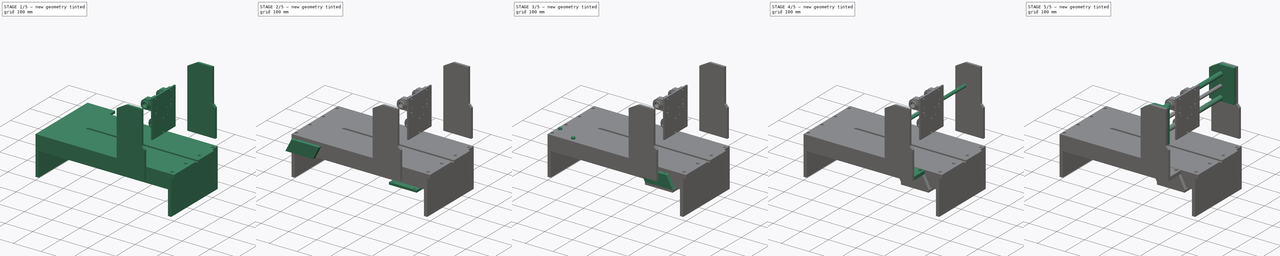
[diagram: build sequence overview — one tinted view per stage of 5, left to right]
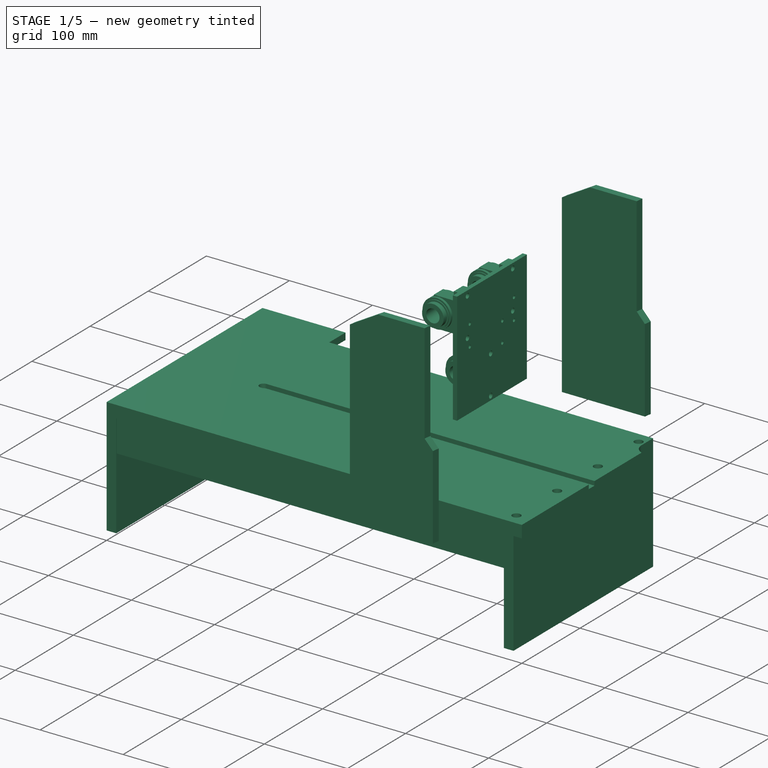
[diagram: stage 1 of 5 — iso view after this stage's code; geometry added in this stage tinted green]
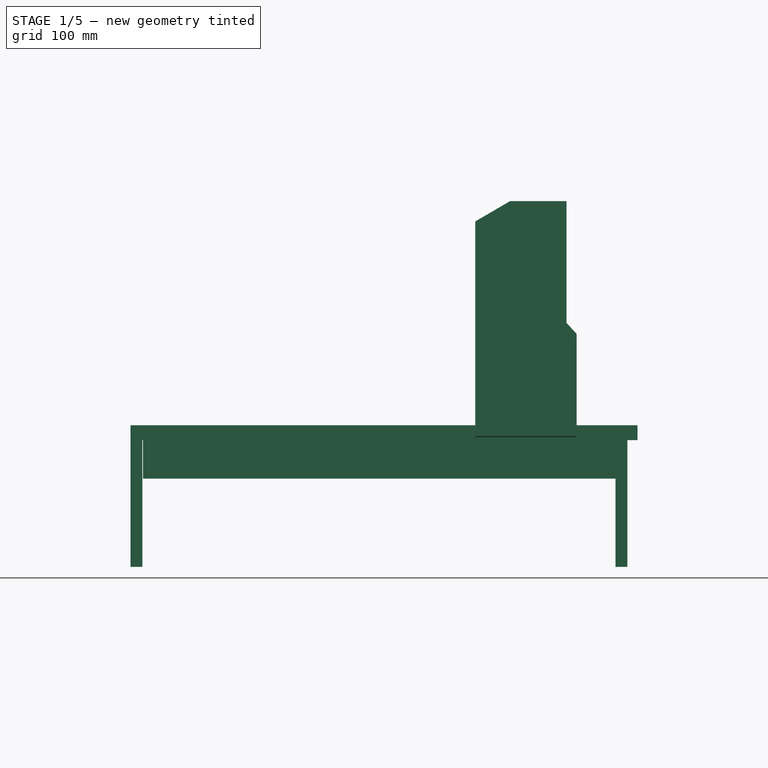
[diagram: stage 1 of 5 — front view after this stage's code; geometry added in this stage tinted green]
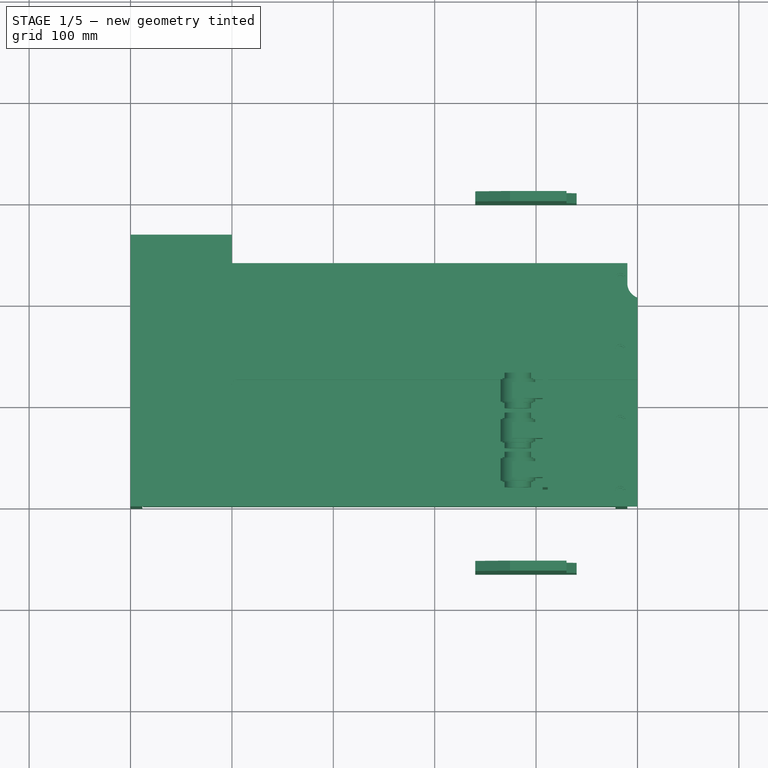
[diagram: stage 1 of 5 — top view after this stage's code; geometry added in this stage tinted green]
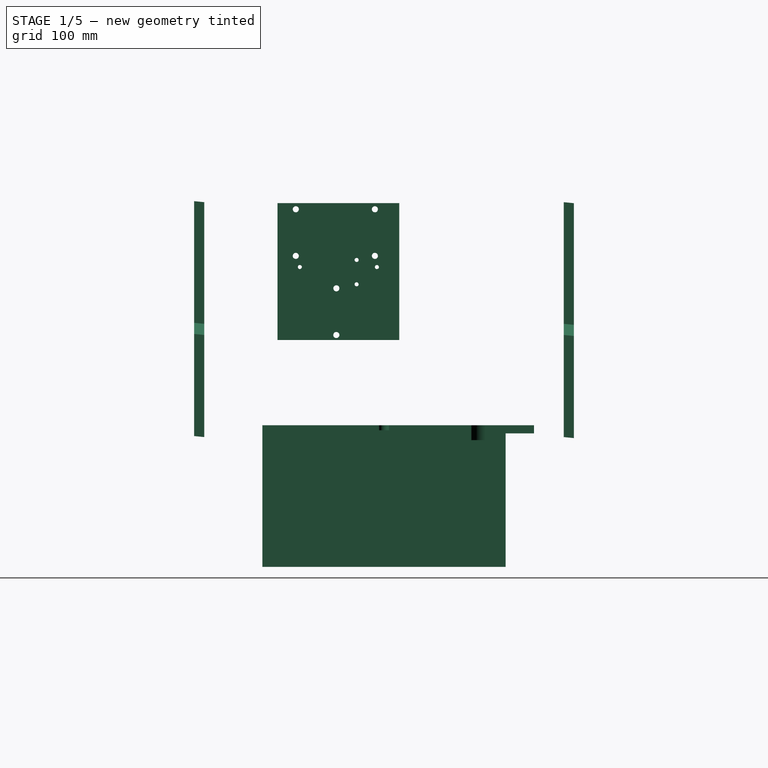
[diagram: stage 1 of 5 — right view after this stage's code; geometry added in this stage tinted green]
FCSTD DOCUMENT  (FreeCAD 0.14R3347 (Git))
Label: mod
License: CC-BY 3.0
LicenseURL: http://creativecommons.org/licenses/by/3.0/
objects: Part::Extrusion×40, Part::Part2DObjectPython×34, Part::Cut×30, PartDesign::Pocket×8, Part::Feature×6, App::DocumentObjectGroup×5, Part::Box×3, Part::Cylinder×2, Sketcher::SketchObject×1
note: 132 computed .brp shape members not serialized (recipe doc carries the construction recipe); baked Part::Feature solids carry a one-line shape summary decoded from their .brp

FEATURE [Part::Feature] Face004
  shape: bbox 100 x 268 x 2e-07 mm, 1 faces, 0 solids (baked)
FEATURE [Part::Part2DObjectPython] Circle056  # Draft 2D object (typed FeaturePython)
  FirstAngle = 0
  LastAngle = 0
  Placement = pos=(12,7,0) rot=(0,0,1;0rad)
  Radius = 6
FEATURE [Part::Part2DObjectPython] Circle057  # Draft 2D object (typed FeaturePython)
  FirstAngle = 0
  LastAngle = 0
  Placement = pos=(88,261,0) rot=(0,0,1;0rad)
  Radius = 6
FEATURE [Part::Part2DObjectPython] Circle058  # Draft 2D object (typed FeaturePython)
  FirstAngle = 0
  LastAngle = 0
  Placement = pos=(12,261,0) rot=(0,0,1;0rad)
  Radius = 6
FEATURE [Part::Part2DObjectPython] Circle059  # Draft 2D object (typed FeaturePython)
  FirstAngle = 0
  LastAngle = 0
  Placement = pos=(88,7,0) rot=(0,0,1;0rad)
  Radius = 6
FEATURE [Part::Extrusion] Extrude029
  Base = -> Face004
  Dir = (0,0,-8.1)
  Solid = true
FEATURE [Part::Extrusion] Extrude033
  Base = -> Circle059
  Dir = (0,0,-4.2)
  Solid = true
FEATURE [Part::Cut] Cut023
  Base = -> Extrude029
  Tool = -> Extrude033
FEATURE [Part::Part2DObjectPython] Circle060  # Draft 2D object (typed FeaturePython)
  FirstAngle = 0
  LastAngle = 0
  Placement = pos=(12,7,0) rot=(0,0,1;0rad)
  Radius = 3
FEATURE [Part::Part2DObjectPython] Circle061  # Draft 2D object (typed FeaturePython)
  FirstAngle = 0
  LastAngle = 0
  Placement = pos=(88,7,0) rot=(0,0,1;0rad)
  Radius = 3
FEATURE [Part::Part2DObjectPython] Circle062  # Draft 2D object (typed FeaturePython)
  FirstAngle = 0
  LastAngle = 0
  Placement = pos=(88,261,0) rot=(0,0,1;0rad)
  Radius = 3
FEATURE [Part::Part2DObjectPython] Circle063  # Draft 2D object (typed FeaturePython)
  FirstAngle = 0
  LastAngle = 0
  Placement = pos=(12,261,0) rot=(0,0,1;0rad)
  Radius = 3
FEATURE [Part::Extrusion] Extrude034
  Base = -> Circle063
  Dir = (0,0,-8.1)
  Solid = true
FEATURE [App::DocumentObjectGroup] Groupe001  label="X_SY"
  Group = -> [Cut013,Cut014,Cut018,Cut022,Cut030]
FEATURE [PartDesign::Pocket] Pocket  label="C_T"
  Length = 5
  Placement = pos=(500,240,-14.7) rot=(0,0,1;3.14159rad)
  Type = 0
FEATURE [Part::Box] Box001  label="C_B"
  Height = 125
  Length = 11.7
  Placement = pos=(489.999,240,-139.7) rot=(0,0,1;3.14159rad)
  Width = 240
FEATURE [Part::Box] Box001001  label="C_F"
  Height = 125
  Length = 11.7
  Placement = pos=(11.7,240,-139.7) rot=(0,0,1;3.14159rad)
  Width = 240
FEATURE [Part::Box] Box  label="X Axis"
  Height = 38
  Length = 466
  Placement = pos=(478.299,240,-52.7) rot=(0,0,1;3.14159rad)
  Width = 240
FEATURE [PartDesign::Pocket] Pocket001  label="Z_P"
  Length = 5
  Placement = pos=(406.499,15,84) rot=(0.57735,0.57735,0.57735;2.0944rad)
  Type = 1
FEATURE [PartDesign::Pocket] Pocket002  label="A_LB_Y0_alu"
  Length = 5
  Placement = pos=(406.499,73,140) rot=(0.707107,0,-0.707107;3.14159rad)
  Type = 1
FEATURE [PartDesign::Pocket] Pocket003  label="A_LB_Y0_plastic"
  Length = 5
  Placement = pos=(406.499,73,140) rot=(0.707107,0,-0.707107;3.14159rad)
  Type = 1
FEATURE [PartDesign::Pocket] Pocket004  label="A_LB_Y1_plastic"
  Length = 5
  Placement = pos=(406.499,111,218) rot=(0.707107,0,-0.707107;3.14159rad)
  Type = 1
FEATURE [PartDesign::Pocket] Pocket005  label="A_LB_Y1_alu"
  Length = 5
  Placement = pos=(406.499,111,218) rot=(0.707107,0,-0.707107;3.14159rad)
  Type = 1
FEATURE [PartDesign::Pocket] Pocket006  label="A_LB_Y2_plastic"
  Length = 5
  Placement = pos=(406.499,33,218) rot=(0.707107,0,-0.707107;3.14159rad)
  Type = 1
FEATURE [PartDesign::Pocket] Pocket007  label="A_LB_Y2_alu"
  Length = 5
  Placement = pos=(406.499,33,218) rot=(0.707107,0,-0.707107;3.14159rad)
  Type = 1
FEATURE [App::DocumentObjectGroup] Groupe002  label="Case"
  Group = -> [Pocket,Box001,Box001001,Box]
FEATURE [App::DocumentObjectGroup] Groupe003  label="Z Axis"
  Group = -> [Pocket001]
FEATURE [App::DocumentObjectGroup] Groupe004  label="Linear Bearings"
  Group = -> [Pocket002,Pocket003,Pocket004,Pocket005,Pocket006,Pocket007]
FEATURE [App::DocumentObjectGroup] Groupe  label="Y Axis"
  Group = -> [Cut002,Extrude004,Extrude005,Cut005,Cylinder,Cylinder001,Groupe004]
FEATURE [Sketcher::SketchObject] Sketch
  Placement = pos=(0,0,0) rot=(1,0,0;1.5708rad)
  sketch-geometry (7):
    g0: LineSegment StartX=202.547 StartY=-11.7 StartZ=0 EndX=202.547 EndY=200 EndZ=0
    g1: LineSegment StartX=202.547 StartY=200 StartZ=0 EndX=236.849 EndY=220 EndZ=0
    g2: LineSegment StartX=236.849 StartY=220 StartZ=0 EndX=292.547 EndY=220 EndZ=0
    g3: LineSegment StartX=292.547 StartY=220 StartZ=0 EndX=292.547 EndY=100 EndZ=0
    g4: LineSegment StartX=292.547 StartY=100 StartZ=0 EndX=302.547 EndY=89 EndZ=0
    g5: LineSegment StartX=302.547 StartY=89 StartZ=0 EndX=302.547 EndY=-11.7 EndZ=0
    g6: LineSegment StartX=302.547 StartY=-11.7 StartZ=0 EndX=202.547 EndY=-11.7 EndZ=0
  constraints (19):
    c: Vertical(g0)
    c: Coincident(g0,g1)
    c: Coincident(g1,g2)
    c: Horizontal(g2)
    c: Coincident(g2,g3)
    c: Vertical(g3)
    c: Coincident(g3,g4)
    c: Coincident(g4,g5)
    c: Vertical(g5)
    c: Coincident(g5,g6)
    c: Horizontal(g6)
    c: Coincident(g6,g0)
    c: DistanceY(g1,g0) = -231.7
    c: DistanceY(g3) = -120
    c: DistanceY(g5) = -100.7
    c: DistanceX(g3,g4) = 10
    c: DistanceX(g6) = -100
    c: DistanceY(g0,g1) = 20
    c: DistanceX(g1,g0) = -34.302
FEATURE [Part::Part2DObjectPython] DWire  # Draft 2D object (typed FeaturePython)
  Base = -> Sketch
  ChamferSize = 0
  Closed = true
  End = (302.547,0,-11.7)
  FilletRadius = 0
  Points = (7) [(202.547,-2.59792e-15,-11.7),(202.547,4.44089e-14,200),(236.849,4.88498e-14,220),(292.547,4.88498e-14,220),(292.547,2.22045e-14,100),+2 more]
  Start = (202.547,0,-11.7)
FEATURE [Part::Extrusion] Extrude038  label="Y_SZ_L"
  Base = -> DWire
  Dir = (0,-10,1)
  Placement = pos=(137.452,-57.3,0) rot=(0,0,1;0rad)
  Solid = true
FEATURE [Part::Part2DObjectPython] DWire001  # Draft 2D object (typed FeaturePython)
  Base = -> Sketch
  ChamferSize = 0
  Closed = true
  End = (302.547,0,-11.7)
  FilletRadius = 0
  Points = (7) [(202.547,-2.59792e-15,-11.7),(202.547,4.44089e-14,200),(236.849,4.88498e-14,220),(292.547,4.88498e-14,220),(292.547,2.22045e-14,100),+2 more]
  Start = (202.547,0,-11.7)
FEATURE [Part::Extrusion] Extrude039  label="Y_SZ_R"
  Base = -> DWire001
  Dir = (0,-10,1)
  Placement = pos=(137.452,307.3,-1) rot=(0,0,1;0rad)
  Solid = true
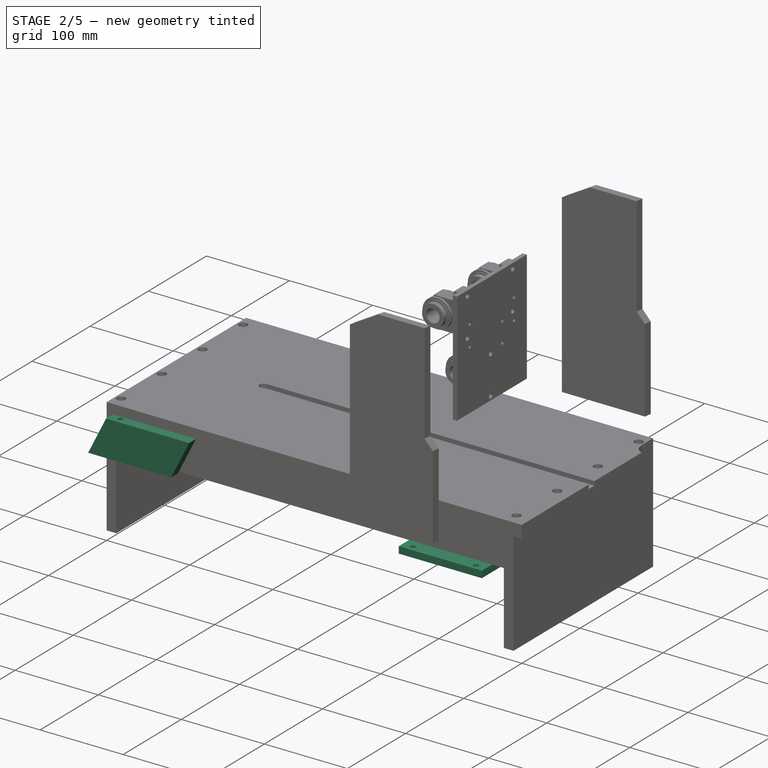
[diagram: stage 2 of 5 — iso view after this stage's code; geometry added in this stage tinted green]
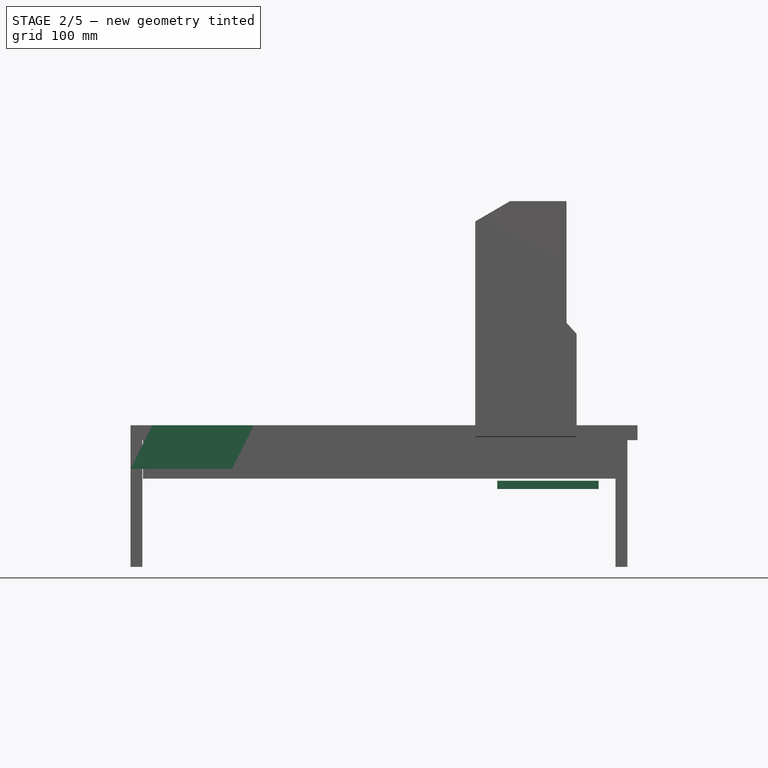
[diagram: stage 2 of 5 — front view after this stage's code; geometry added in this stage tinted green]
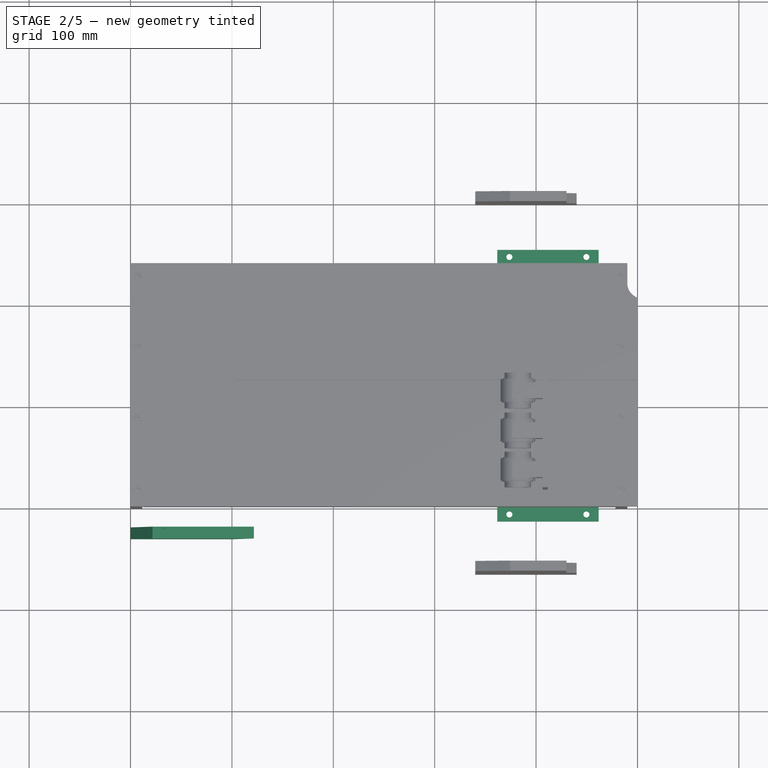
[diagram: stage 2 of 5 — top view after this stage's code; geometry added in this stage tinted green]
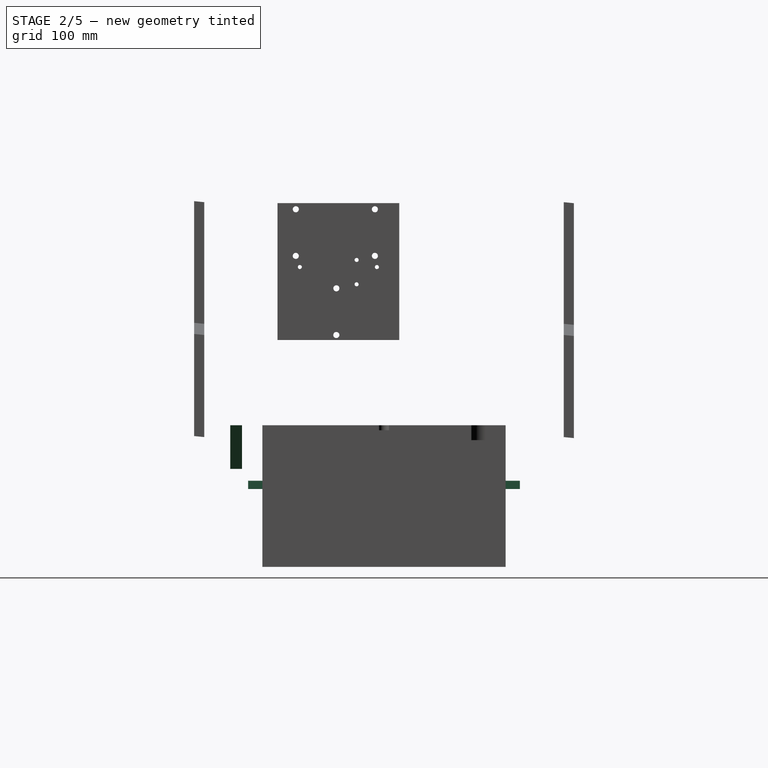
[diagram: stage 2 of 5 — right view after this stage's code; geometry added in this stage tinted green]
FEATURE [Part::Feature] Face003
  shape: bbox 121.6 x 43.1 x 2e-07 mm, 1 faces, 0 solids (baked)
FEATURE [Part::Part2DObjectPython] Circle044  # Draft 2D object (typed FeaturePython)
  FirstAngle = 0
  LastAngle = 0
  Placement = pos=(12,65.5,0) rot=(0,0,1;0rad)
  Radius = 3
FEATURE [Part::Part2DObjectPython] Circle045  # Draft 2D object (typed FeaturePython)
  FirstAngle = 0
  LastAngle = 0
  Placement = pos=(88,65.5,0) rot=(0,0,1;0rad)
  Radius = 3
FEATURE [Part::Part2DObjectPython] Circle046  # Draft 2D object (typed FeaturePython)
  FirstAngle = 0
  LastAngle = 0
  Placement = pos=(33.64,-24.5,0) rot=(0,0,1;0rad)
  Radius = 3
FEATURE [Part::Part2DObjectPython] Circle047  # Draft 2D object (typed FeaturePython)
  FirstAngle = 0
  LastAngle = 0
  Placement = pos=(109.64,-24.5,0) rot=(0,0,1;0rad)
  Radius = 3
FEATURE [Part::Extrusion] Extrude024
  Base = -> Face003
  Dir = (0,0,11.7)
  Placement = pos=(0,-31.7,0) rot=(-1,0,0;1.5708rad)
  Solid = false
FEATURE [Part::Extrusion] Extrude027
  Base = -> Circle046
  Dir = (0,0,-16)
  Solid = false
FEATURE [Part::Cut] Cut019
  Base = -> Extrude024
  Tool = -> Extrude027
FEATURE [Part::Extrusion] Extrude030
  Base = -> Circle056
  Dir = (0,0,-4.2)
  Solid = true
FEATURE [Part::Extrusion] Extrude031
  Base = -> Circle057
  Dir = (0,0,-4.2)
  Solid = true
FEATURE [Part::Extrusion] Extrude032
  Base = -> Circle058
  Dir = (0,0,-4.2)
  Solid = true
FEATURE [Part::Cut] Cut024
  Base = -> Cut023
  Tool = -> Extrude030
FEATURE [Part::Cut] Cut025
  Base = -> Cut024
  Tool = -> Extrude032
FEATURE [Part::Cut] Cut026
  Base = -> Cut025
  Tool = -> Extrude031
FEATURE [Part::Extrusion] Extrude035
  Base = -> Circle060
  Dir = (0,0,-8.1)
  Solid = true
FEATURE [Part::Extrusion] Extrude036
  Base = -> Circle061
  Dir = (0,0,-8.1)
  Solid = true
FEATURE [Part::Extrusion] Extrude037
  Base = -> Circle062
  Dir = (0,0,-8.1)
  Solid = true
FEATURE [Part::Cut] Cut027
  Base = -> Cut026
  Tool = -> Extrude034
FEATURE [Part::Cut] Cut028
  Base = -> Cut027
  Tool = -> Extrude037
FEATURE [Part::Cut] Cut029
  Base = -> Cut028
  Tool = -> Extrude036
FEATURE [Part::Cut] Cut030  label="X_SY_B"
  Base = -> Cut029
  Placement = pos=(461.639,-14,-62.9) rot=(0,1,0;3.14159rad)
  Tool = -> Extrude035
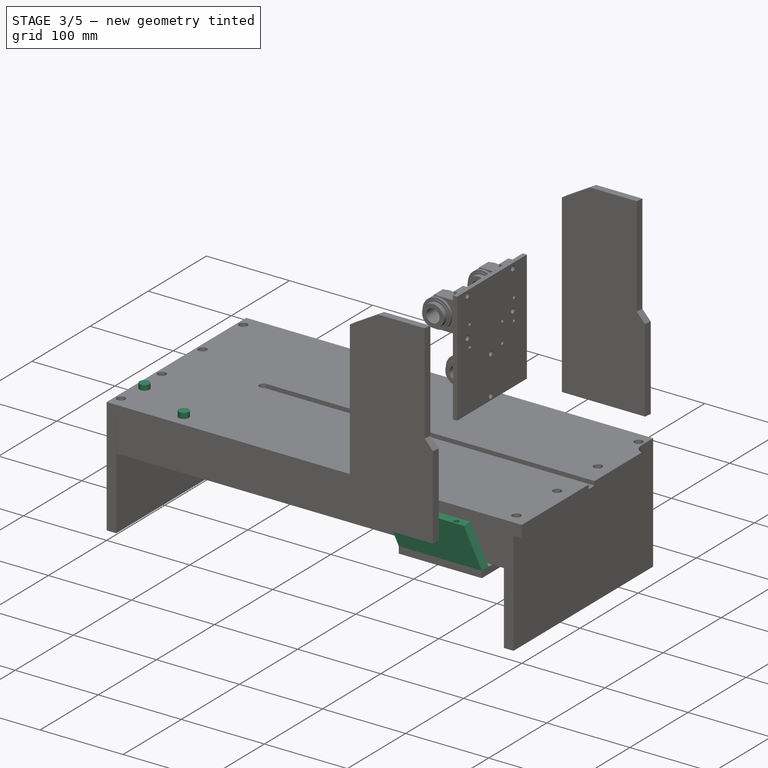
[diagram: stage 3 of 5 — iso view after this stage's code; geometry added in this stage tinted green]
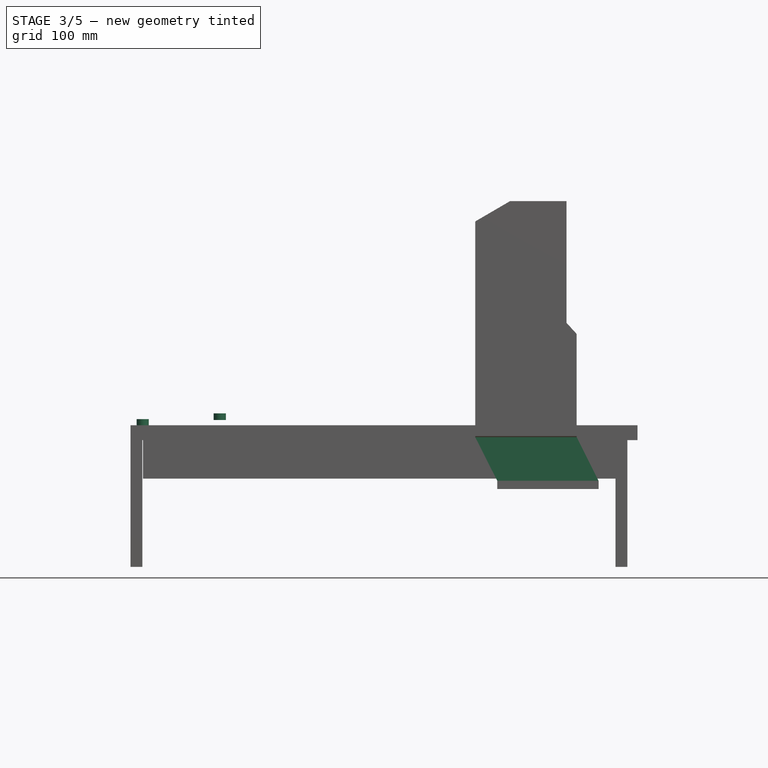
[diagram: stage 3 of 5 — front view after this stage's code; geometry added in this stage tinted green]
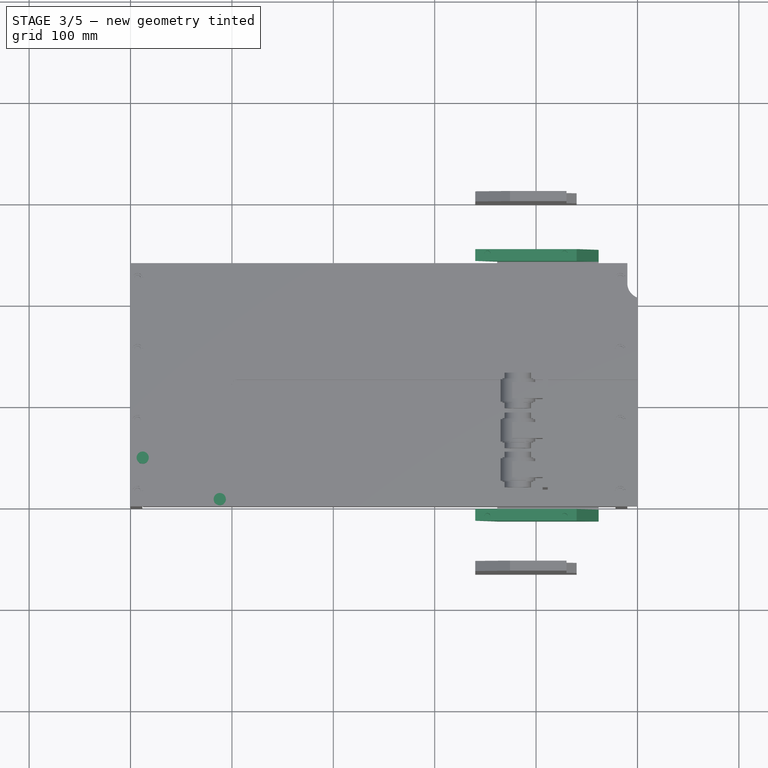
[diagram: stage 3 of 5 — top view after this stage's code; geometry added in this stage tinted green]
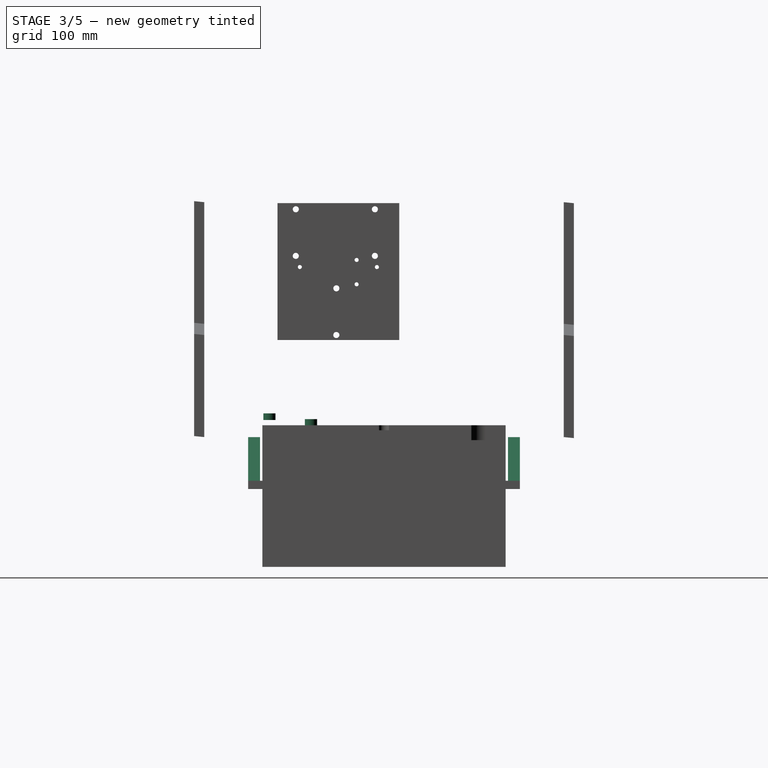
[diagram: stage 3 of 5 — right view after this stage's code; geometry added in this stage tinted green]
FEATURE [Part::Part2DObjectPython] Circle028  # Draft 2D object (typed FeaturePython)
  FirstAngle = 0
  LastAngle = 0
  Placement = pos=(12,48,0) rot=(0,0,1;0rad)
  Radius = 6
FEATURE [Part::Part2DObjectPython] Circle029  # Draft 2D object (typed FeaturePython)
  FirstAngle = 0
  LastAngle = 0
  Placement = pos=(88,48,0) rot=(0,0,1;0rad)
  Radius = 6
FEATURE [Part::Extrusion] Extrude015
  Base = -> Circle028
  Dir = (0,0,6)
  Solid = false
FEATURE [Part::Part2DObjectPython] Circle030  # Draft 2D object (typed FeaturePython)
  FirstAngle = 0
  LastAngle = 0
  Placement = pos=(88,7,0) rot=(0,0,1;0rad)
  Radius = 6
FEATURE [Part::Part2DObjectPython] Circle031  # Draft 2D object (typed FeaturePython)
  FirstAngle = 0
  LastAngle = 0
  Placement = pos=(12,7,0) rot=(0,0,1;0rad)
  Radius = 6
FEATURE [Part::Extrusion] Extrude017
  Base = -> Circle030
  Dir = (0,0,6.5)
  Placement = pos=(0,0,5.2) rot=(0,0,1;0rad)
  Solid = false
FEATURE [Part::Feature] Cut014  label="X_SY_LT"
  Placement = pos=(339.999,242.3,-11.7) rot=(0,0,1;0rad)
  shape: bbox 100 x 55 x 11.7 mm, 18 faces (baked)
FEATURE [Part::Feature] Face002
  shape: bbox 121.6 x 43.1 x 2e-07 mm, 1 faces, 0 solids (baked)
FEATURE [Part::Part2DObjectPython] Circle036  # Draft 2D object (typed FeaturePython)
  FirstAngle = 0
  LastAngle = 0
  Placement = pos=(12,62.8,0) rot=(0,0,1;0rad)
  Radius = 3
FEATURE [Part::Part2DObjectPython] Circle037  # Draft 2D object (typed FeaturePython)
  FirstAngle = 0
  LastAngle = 0
  Placement = pos=(109.64,-27.2,0) rot=(0,0,1;0rad)
  Radius = 3
FEATURE [Part::Part2DObjectPython] Circle038  # Draft 2D object (typed FeaturePython)
  FirstAngle = 0
  LastAngle = 0
  Placement = pos=(33.64,-27.2,0) rot=(0,0,1;0rad)
  Radius = 3
FEATURE [Part::Part2DObjectPython] Circle039  # Draft 2D object (typed FeaturePython)
  FirstAngle = 0
  LastAngle = 0
  Placement = pos=(88,62.8,0) rot=(0,0,1;0rad)
  Radius = 3
FEATURE [Part::Extrusion] Extrude019
  Base = -> Face002
  Dir = (0,0,11.7)
  Placement = pos=(0,70,-43.1) rot=(1,0,0;1.5708rad)
  Solid = false
FEATURE [Part::Extrusion] Extrude020
  Base = -> Circle036
  Dir = (0,0,-16)
  Solid = false
FEATURE [Part::Extrusion] Extrude021
  Base = -> Circle037
  Dir = (0,0,-16)
  Solid = false
FEATURE [Part::Extrusion] Extrude022
  Base = -> Circle038
  Dir = (0,0,-16)
  Solid = false
FEATURE [Part::Extrusion] Extrude023
  Base = -> Circle039
  Dir = (0,0,-16)
  Solid = false
FEATURE [Part::Cut] Cut015
  Base = -> Extrude019
  Tool = -> Extrude020
FEATURE [Part::Cut] Cut016
  Base = -> Cut015
  Placement = pos=(0,38.3,-43.1) rot=(1,0,0;3.14159rad)
  Tool = -> Extrude023
FEATURE [Part::Cut] Cut017
  Base = -> Cut016
  Tool = -> Extrude022
FEATURE [Part::Cut] Cut018  label="X_SY_LM"
  Base = -> Cut017
  Placement = pos=(461.639,222.3,-11.7) rot=(0,0,1;3.14159rad)
  Tool = -> Extrude021
FEATURE [Part::Extrusion] Extrude025
  Base = -> Circle044
  Dir = (0,0,-16)
  Solid = false
FEATURE [Part::Extrusion] Extrude026
  Base = -> Circle045
  Dir = (0,0,-16)
  Solid = false
FEATURE [Part::Extrusion] Extrude028
  Base = -> Circle047
  Dir = (0,0,-16)
  Solid = false
FEATURE [Part::Cut] Cut020
  Base = -> Cut019
  Placement = pos=(0,38.3,-43.1) rot=(1,0,0;3.14159rad)
  Tool = -> Extrude028
FEATURE [Part::Cut] Cut021
  Base = -> Cut020
  Tool = -> Extrude026
FEATURE [Part::Cut] Cut022  label="X_SY_RM"
  Base = -> Cut021
  Placement = pos=(461.639,-72.3,-54.8) rot=(0,1,0;3.14159rad)
  Tool = -> Extrude025
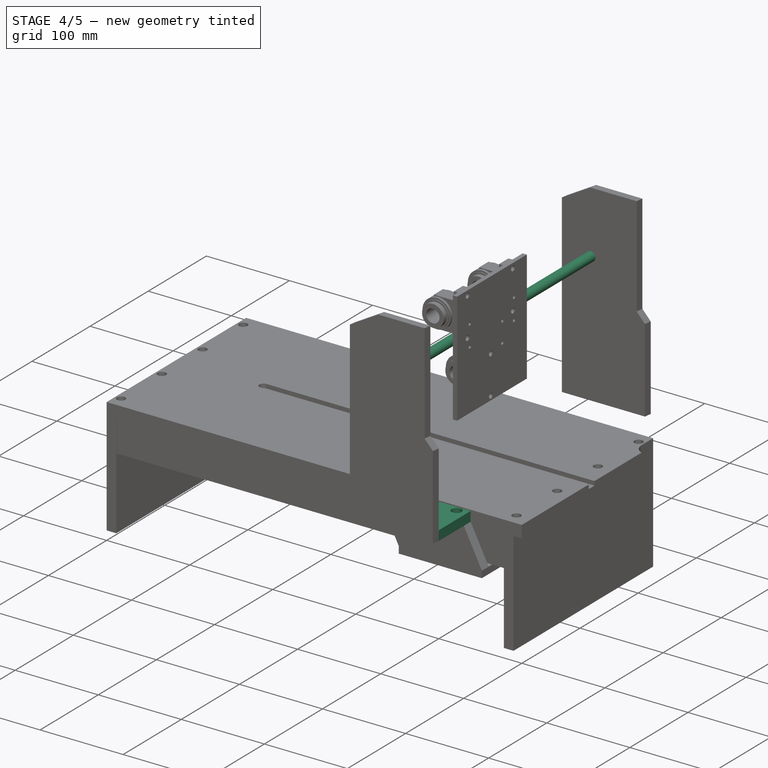
[diagram: stage 4 of 5 — iso view after this stage's code; geometry added in this stage tinted green]
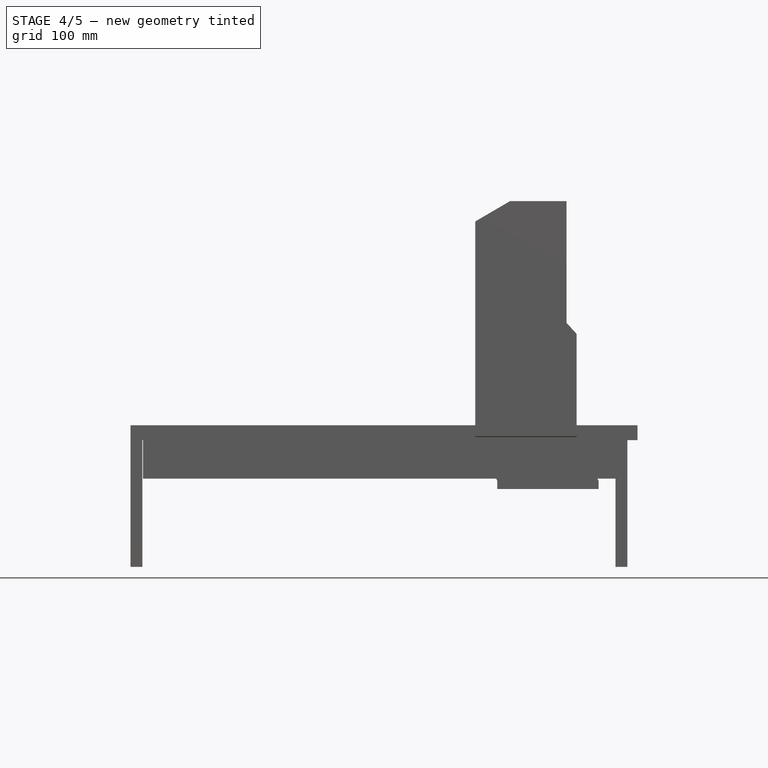
[diagram: stage 4 of 5 — front view after this stage's code; geometry added in this stage tinted green]
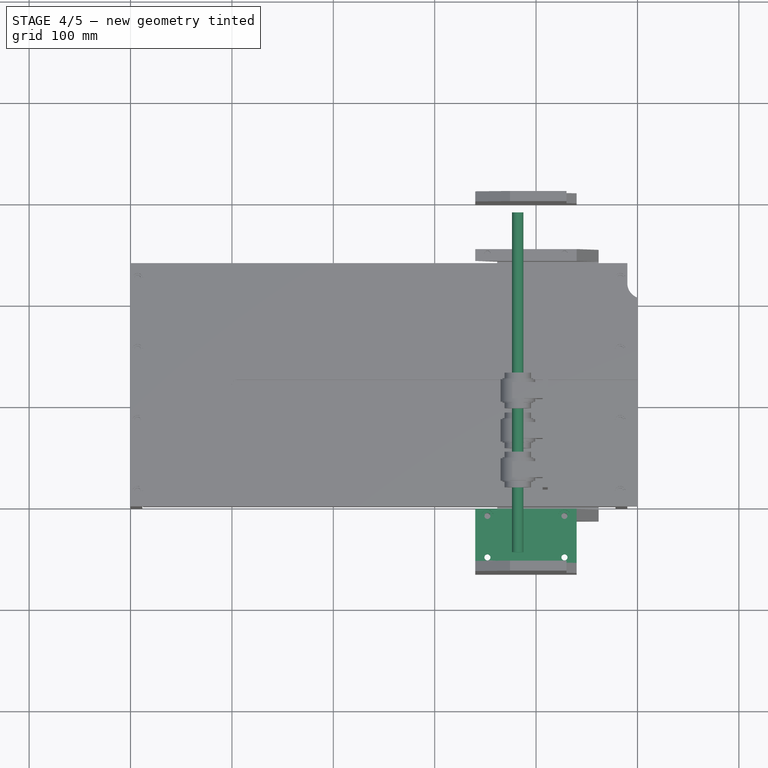
[diagram: stage 4 of 5 — top view after this stage's code; geometry added in this stage tinted green]
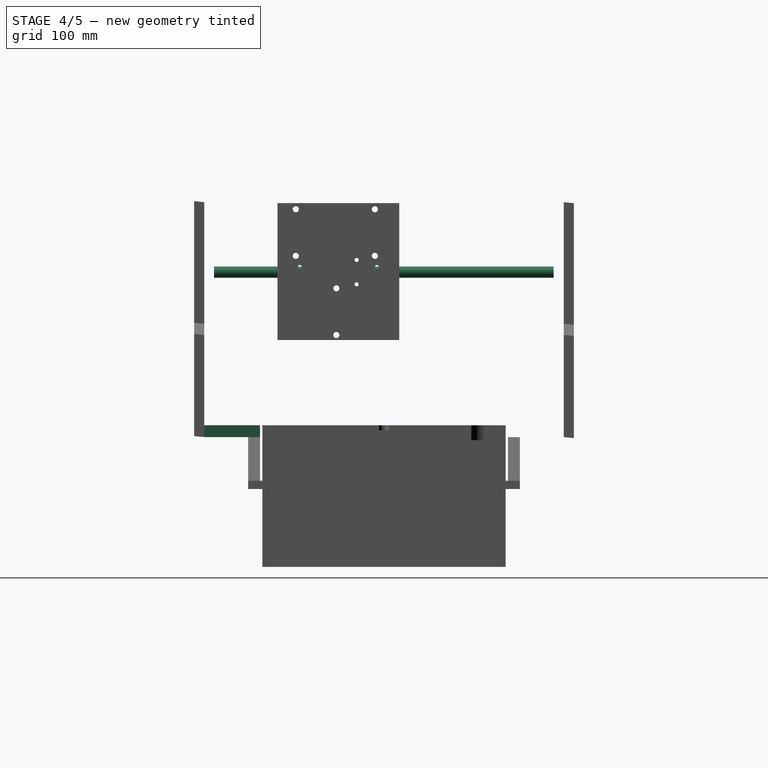
[diagram: stage 4 of 5 — right view after this stage's code; geometry added in this stage tinted green]
FEATURE [Part::Cylinder] Cylinder001  label="Y_S"
  Angle = 360
  Height = 335
  Placement = pos=(381.889,-47.7,151) rot=(-0.57735,-0.57735,-0.57735;2.0944rad)
  Radius = 5.6
FEATURE [Part::Feature] Face001
  shape: bbox 100 x 55 x 2e-07 mm, 1 faces, 0 solids (baked)
FEATURE [Part::Part2DObjectPython] Circle024  # Draft 2D object (typed FeaturePython)
  FirstAngle = 0
  LastAngle = 0
  Placement = pos=(12,7,0) rot=(0,0,1;0rad)
  Radius = 3
FEATURE [Part::Part2DObjectPython] Circle025  # Draft 2D object (typed FeaturePython)
  FirstAngle = 0
  LastAngle = 0
  Placement = pos=(88,7,0) rot=(0,0,1;0rad)
  Radius = 3
FEATURE [Part::Part2DObjectPython] Circle026  # Draft 2D object (typed FeaturePython)
  FirstAngle = 0
  LastAngle = 0
  Placement = pos=(12,48,0) rot=(0,0,1;0rad)
  Radius = 3
FEATURE [Part::Part2DObjectPython] Circle027  # Draft 2D object (typed FeaturePython)
  FirstAngle = 0
  LastAngle = 0
  Placement = pos=(88,48,0) rot=(0,0,1;0rad)
  Radius = 3
FEATURE [Part::Extrusion] Extrude010
  Base = -> Face001
  Dir = (0,0,11.7)
  Solid = false
FEATURE [Part::Extrusion] Extrude011
  Base = -> Circle024
  Dir = (0,0,11.7)
  Solid = false
FEATURE [Part::Extrusion] Extrude013
  Base = -> Circle026
  Dir = (0,0,11.7)
  Solid = false
FEATURE [Part::Extrusion] Extrude012
  Base = -> Circle025
  Dir = (0,0,11.7)
  Solid = false
FEATURE [Part::Extrusion] Extrude014
  Base = -> Circle027
  Dir = (0,0,11.7)
  Solid = false
FEATURE [Part::Cut] Cut006
  Base = -> Extrude010
  Tool = -> Extrude011
FEATURE [Part::Cut] Cut007
  Base = -> Cut006
  Tool = -> Extrude014
FEATURE [Part::Cut] Cut008
  Base = -> Cut007
  Tool = -> Extrude012
FEATURE [Part::Cut] Cut009
  Base = -> Cut008
  Tool = -> Extrude013
FEATURE [Part::Extrusion] Extrude016
  Base = -> Circle029
  Dir = (0,0,6)
  Solid = false
FEATURE [Part::Cut] Cut010
  Base = -> Cut009
  Tool = -> Extrude015
FEATURE [Part::Cut] Cut011
  Base = -> Cut010
  Tool = -> Extrude016
FEATURE [Part::Extrusion] Extrude018
  Base = -> Circle031
  Dir = (0,0,6.5)
  Placement = pos=(0,0,5.2) rot=(0,0,1;0rad)
  Solid = false
FEATURE [Part::Cut] Cut012
  Base = -> Cut011
  Tool = -> Extrude017
FEATURE [Part::Cut] Cut013  label="X_SY_RT"
  Base = -> Cut012
  Placement = pos=(439.999,-2.3,-11.7) rot=(0,0,1;3.14159rad)
  Tool = -> Extrude018
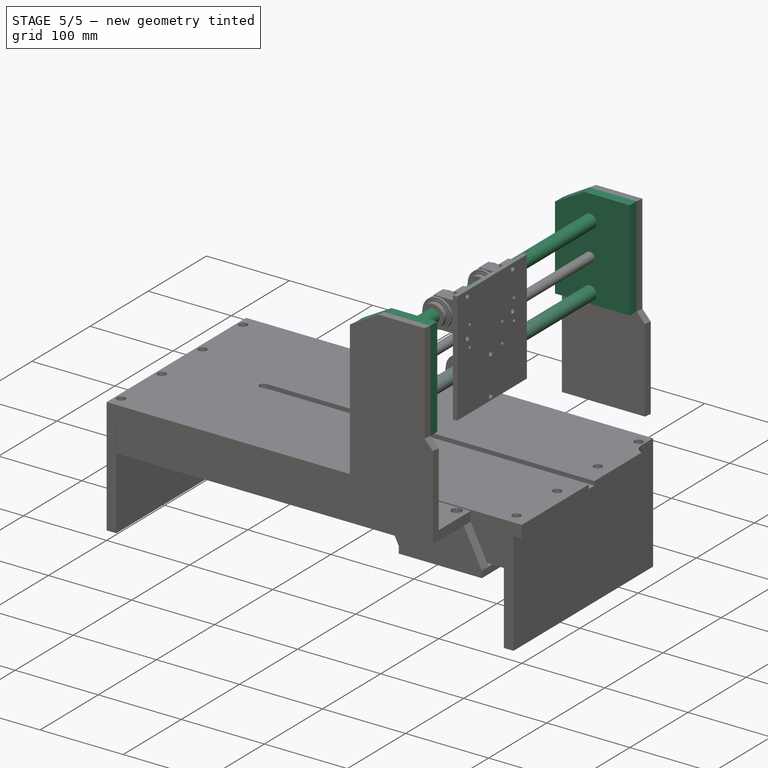
[diagram: stage 5 of 5 — iso view after this stage's code; geometry added in this stage tinted green]
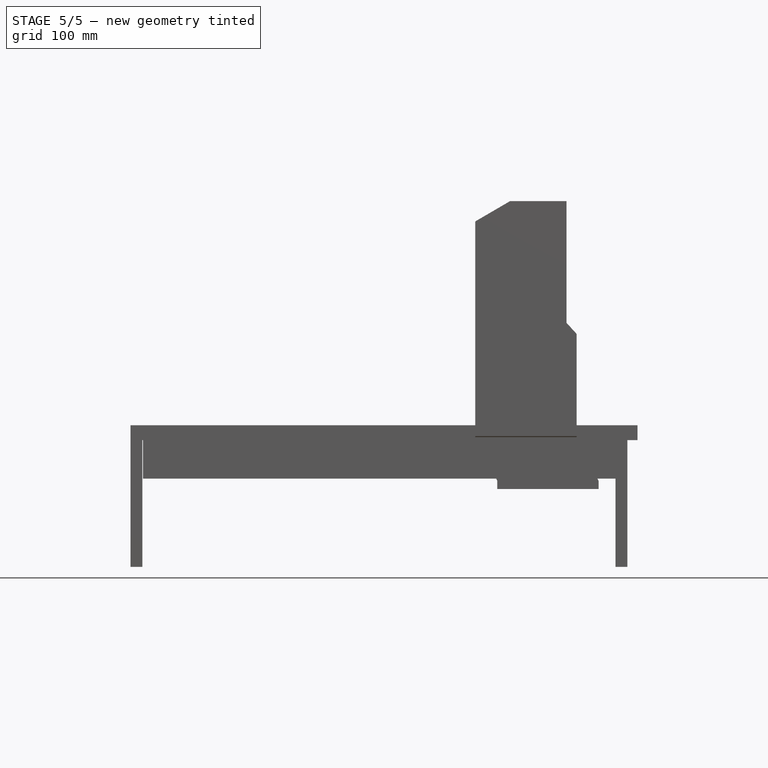
[diagram: stage 5 of 5 — front view after this stage's code; geometry added in this stage tinted green]
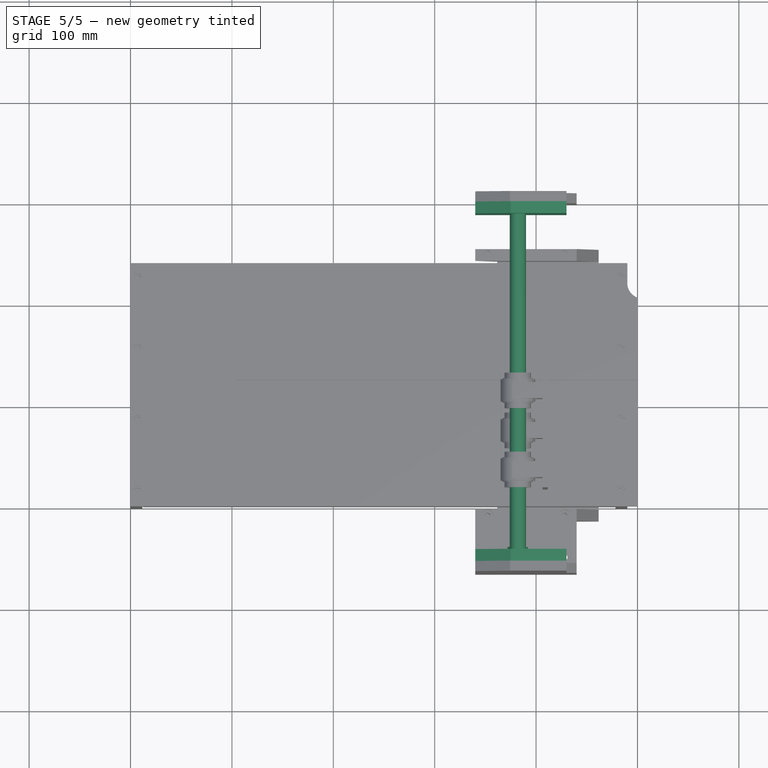
[diagram: stage 5 of 5 — top view after this stage's code; geometry added in this stage tinted green]
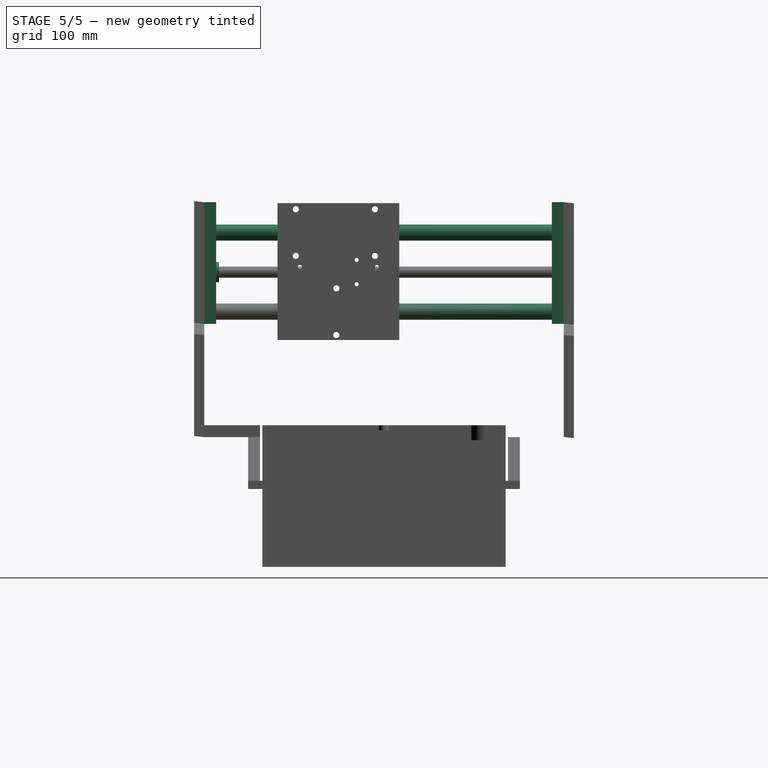
[diagram: stage 5 of 5 — right view after this stage's code; geometry added in this stage tinted green]
FEATURE [Part::Extrusion] Extrude
  Dir = (0,0,11.7)
  Solid = true
FEATURE [Part::Part2DObjectPython] Circle003  # Draft 2D object (typed FeaturePython)
  FirstAngle = 0
  LastAngle = 0
  Placement = pos=(48,12,0) rot=(0,0,1;0rad)
  Radius = 8
FEATURE [Part::Part2DObjectPython] Circle  # Draft 2D object (typed FeaturePython)
  FirstAngle = 0
  LastAngle = 0
  Placement = pos=(48,90,0) rot=(0,0,1;0rad)
  Radius = 8
FEATURE [Part::Part2DObjectPython] Circle004  # Draft 2D object (typed FeaturePython)
  FirstAngle = 0
  LastAngle = 0
  Placement = pos=(48,51,0) rot=(0,0,1;0rad)
  Radius = 4
FEATURE [Part::Extrusion] Extrude001
  Base = -> Circle003
  Dir = (0,0,11.7)
  Solid = false
FEATURE [Part::Extrusion] Extrude002
  Base = -> Circle
  Dir = (0,0,11.7)
  Solid = false
FEATURE [Part::Extrusion] Extrude003
  Base = -> Circle004
  Dir = (0,0,11.7)
  Solid = false
FEATURE [Part::Cut] Cut
  Base = -> Extrude
  Tool = -> Extrude001
FEATURE [Part::Cut] Cut001
  Base = -> Cut
  Tool = -> Extrude003
FEATURE [Part::Cut] Cut002  label="Y_P_L"
  Base = -> Cut001
  Placement = pos=(429.999,285.6,100) rot=(0,0.707107,0.707107;3.14159rad)
  Tool = -> Extrude002
FEATURE [Part::Part2DObjectPython] Circle008  # Draft 2D object (typed FeaturePython)
  FirstAngle = 0
  LastAngle = 0
  Placement = pos=(48,90,0) rot=(0,0,1;0rad)
  Radius = 8
FEATURE [Part::Extrusion] Extrude004  label="Y_G_U"
  Base = -> Circle008
  Dir = (0,0,355)
  Placement = pos=(429.999,-57.7,100) rot=(0,0.707107,0.707107;3.14159rad)
  Solid = true
FEATURE [Part::Part2DObjectPython] Circle009  # Draft 2D object (typed FeaturePython)
  FirstAngle = 0
  LastAngle = 0
  Placement = pos=(48,12,0) rot=(0,0,1;0rad)
  Radius = 8
FEATURE [Part::Extrusion] Extrude005  label="Y_G_D"
  Base = -> Circle009
  Dir = (0,0,355)
  Placement = pos=(429.999,-57.7,100) rot=(0,0.707107,0.707107;3.14159rad)
  Solid = true
FEATURE [Part::Part2DObjectPython] Circle013  # Draft 2D object (typed FeaturePython)
  FirstAngle = 0
  LastAngle = 0
  Placement = pos=(48,51,0) rot=(0,0,1;0rad)
  Radius = 20
FEATURE [Part::Part2DObjectPython] Circle014  # Draft 2D object (typed FeaturePython)
  FirstAngle = 0
  LastAngle = 0
  Placement = pos=(48,90,0) rot=(0,0,1;0rad)
  Radius = 8
FEATURE [Part::Part2DObjectPython] Circle015  # Draft 2D object (typed FeaturePython)
  FirstAngle = 0
  LastAngle = 0
  Placement = pos=(48,12,0) rot=(0,0,1;0rad)
  Radius = 8
FEATURE [Part::Extrusion] Extrude006
  Base = -> Circle013
  Dir = (0,0,11.7)
  Solid = true
FEATURE [Part::Feature] Face
  shape: bbox 90 x 120 x 2e-07 mm, 1 faces, 0 solids (baked)
FEATURE [Part::Extrusion] Extrude007
  Base = -> Circle014
  Dir = (0,0,11.7)
  Solid = true
FEATURE [Part::Extrusion] Extrude008
  Base = -> Circle015
  Dir = (0,0,11.7)
  Solid = true
FEATURE [Part::Extrusion] Extrude009
  Base = -> Face
  Dir = (0,0,11.7)
  Solid = true
FEATURE [Part::Cut] Cut003
  Base = -> Extrude009
  Tool = -> Extrude008
FEATURE [Part::Cut] Cut004
  Base = -> Cut003
  Tool = -> Extrude007
FEATURE [Part::Cut] Cut005  label="Y_P_R"
  Base = -> Cut004
  Placement = pos=(429.999,-57.3,100) rot=(0,0.707107,0.707107;3.14159rad)
  Tool = -> Extrude006
FEATURE [Part::Cylinder] Cylinder  label="Y_SC"
  Angle = 360
  Height = 10
  Placement = pos=(381.889,-52.7,151) rot=(-0.57735,-0.57735,-0.57735;2.0944rad)
  Radius = 10
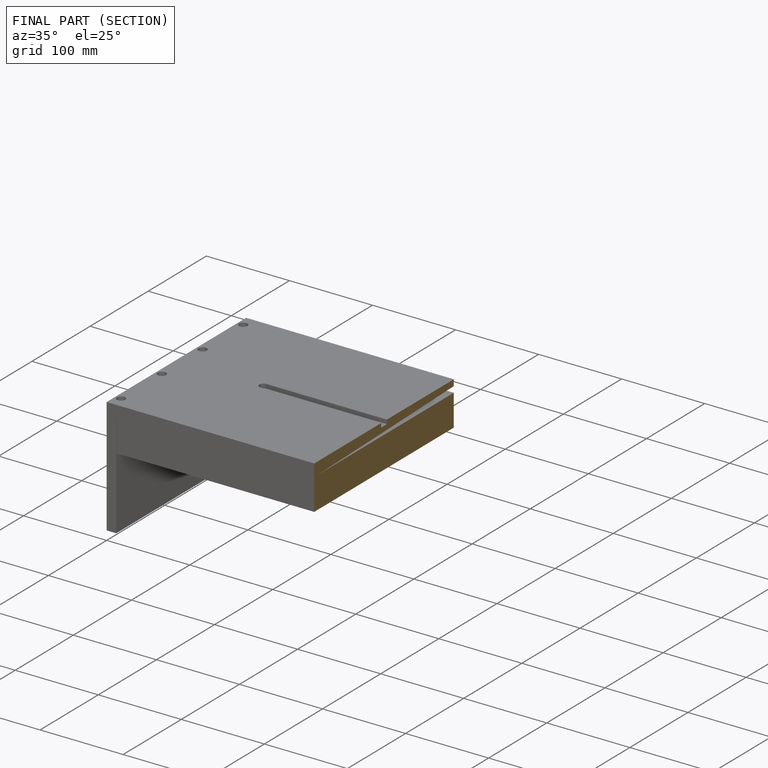
[diagram: finished part — half-section view (interior)]
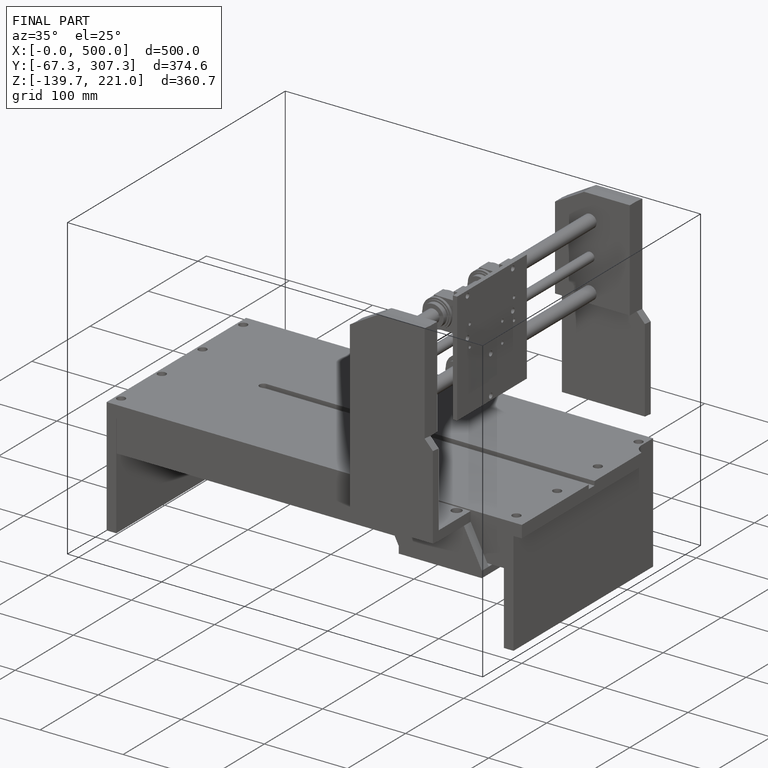
[diagram: finished part — iso view with bounding-box wireframe]
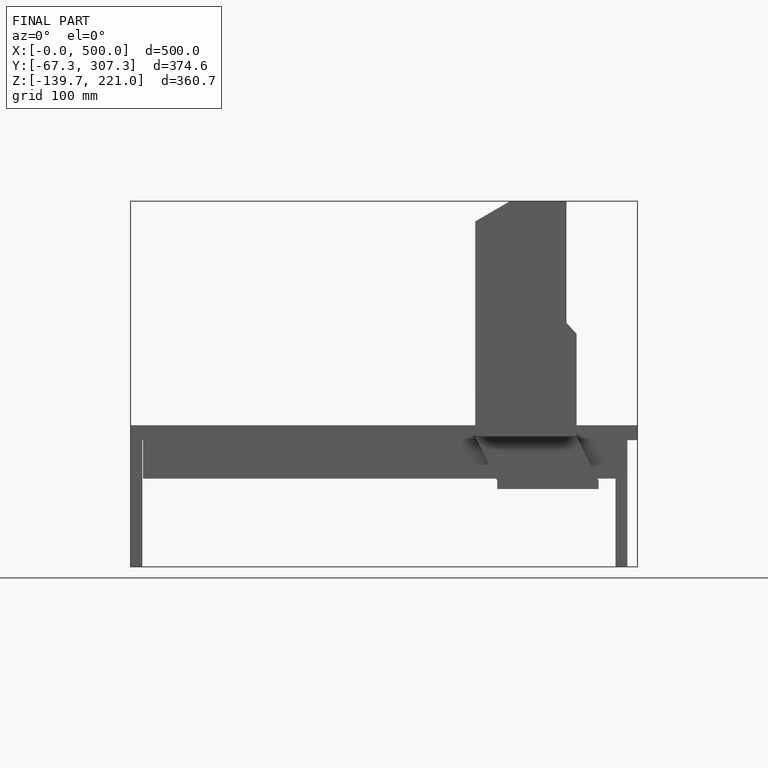
[diagram: finished part — front view with bounding-box wireframe]
